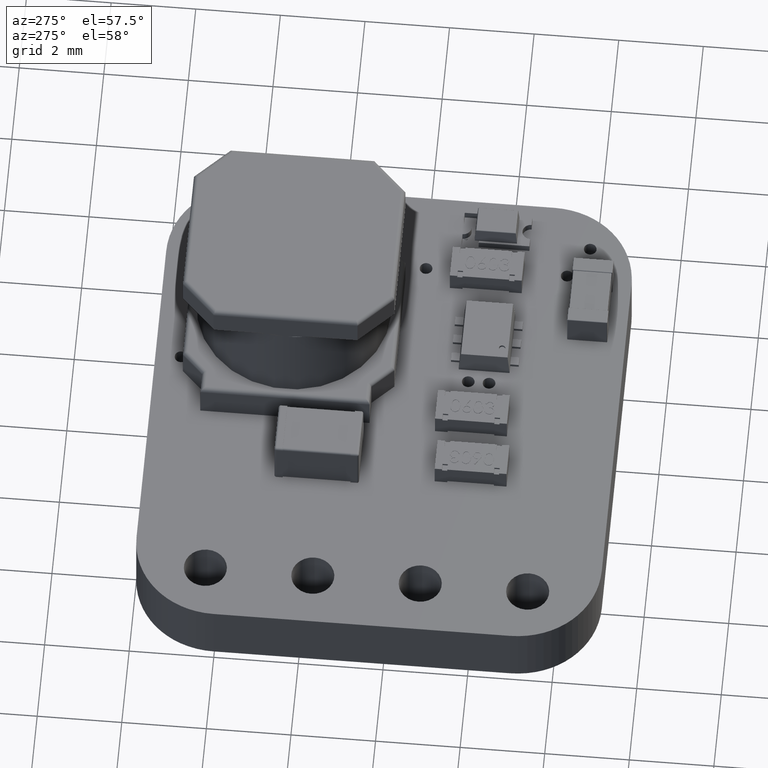
[diagram: clean part render]
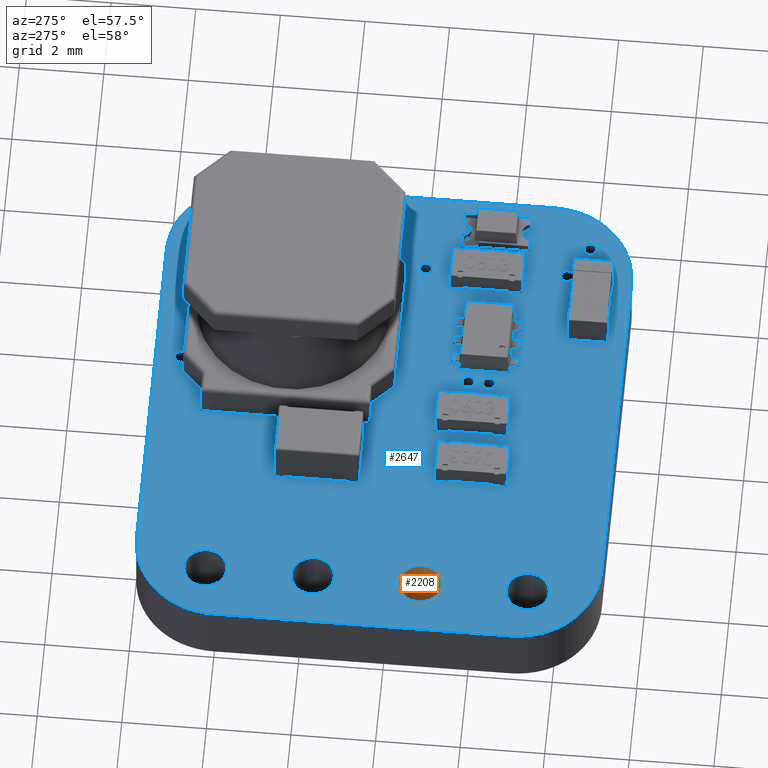
[diagram: same view with the hole feature highlighted: cylindrical wall and planar end face, labeled with their STEP entity ids]
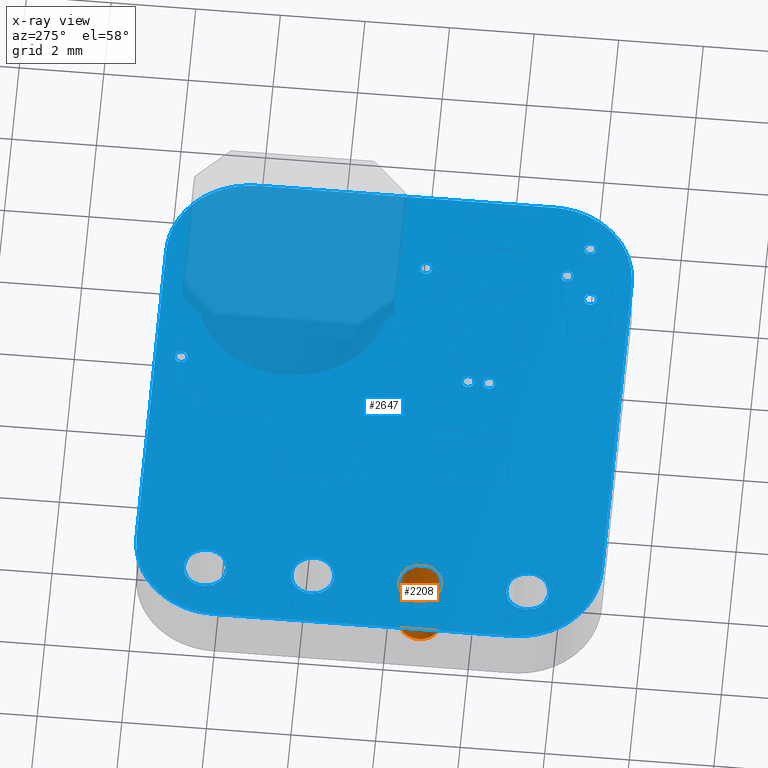
[diagram: x-ray of the same camera — body ghosted, the hole faces saturated]
A machine part, auxiliary view. The highlighted faces form one hole feature of diameter 1.016 mm: the cylindrical wall (entity #2208, orange) and its adjacent planar end face (entity #2647, blue) — they share a circular edge in the B-rep.
The next image is the same camera in x-ray (body ghosted, the hole faces saturated) — the bore reads through the body.
Wall:
#2208 = ADVANCED_FACE('',(#2209),#2236,.F.);
#2209 = FACE_BOUND('',#2210,.T.);
#2210 = EDGE_LOOP('',(#2211,#2221,#2228,#2229));
#2211 = ORIENTED_EDGE('',*,*,#2212,.T.);
#2212 = EDGE_CURVE('',#2213,#2215,#2217,.T.);
#2213 = VERTEX_POINT('',#2214);
#2214 = CARTESIAN_POINT('',(1.778,-6.77,-0.82));
#2215 = VERTEX_POINT('',#2216);
#2216 = CARTESIAN_POINT('',(1.778,-6.77,0.82));
#2217 = LINE('',#2218,#2219);
#2218 = CARTESIAN_POINT('',(1.778,-6.77,-0.82));
#2219 = VECTOR('',#2220,1.);
#2220 = DIRECTION('',(0.,0.,1.));
#2221 = ORIENTED_EDGE('',*,*,#2222,.T.);
#2222 = EDGE_CURVE('',#2215,#2215,#2223,.T.);
#2223 = CIRCLE('',#2224,0.508);
#2224 = AXIS2_PLACEMENT_3D('',#2225,#2226,#2227);
#2225 = CARTESIAN_POINT('',(1.27,-6.77,0.82));
#2226 = DIRECTION('',(0.,0.,1.));
#2227 = DIRECTION('',(1.,0.,-0.));
#2228 = ORIENTED_EDGE('',*,*,#2212,.F.);
#2229 = ORIENTED_EDGE('',*,*,#2230,.F.);
#2230 = EDGE_CURVE('',#2213,#2213,#2231,.T.);
#2231 = CIRCLE('',#2232,0.508);
#2232 = AXIS2_PLACEMENT_3D('',#2233,#2234,#2235);
#2233 = CARTESIAN_POINT('',(1.27,-6.77,-0.82));
#2234 = DIRECTION('',(0.,0.,1.));
#2235 = DIRECTION('',(1.,0.,-0.));
#2236 = CYLINDRICAL_SURFACE('',#2237,0.508);
#2237 = AXIS2_PLACEMENT_3D('',#2238,#2239,#2240);
#2238 = CARTESIAN_POINT('',(1.27,-6.77,-0.82));
#2239 = DIRECTION('',(-0.,-0.,-1.));
#2240 = DIRECTION('',(1.,0.,-0.));
End face:
#74 = VERTEX_POINT('',#75);
#75 = CARTESIAN_POINT('',(10.,0.,0.82));
#81 = EDGE_CURVE('',#74,#82,#84,.T.);
#82 = VERTEX_POINT('',#83);
#83 = CARTESIAN_POINT('',(2.,0.,0.82));
#84 = LINE('',#85,#86);
#85 = CARTESIAN_POINT('',(10.,0.,0.82));
#86 = VECTOR('',#87,1.);
#87 = DIRECTION('',(-1.,0.,0.));
#114 = VERTEX_POINT('',#115);
#115 = CARTESIAN_POINT('',(10.20786,-1.01E-02,0.82));
#121 = EDGE_CURVE('',#114,#74,#122,.T.);
#122 = LINE('',#123,#124);
#123 = CARTESIAN_POINT('',(10.20786,-1.01E-02,0.82));
#124 = VECTOR('',#125,1.);
#125 = DIRECTION('',(-0.998821572954,4.853313714442E-02,0.));
#143 = EDGE_CURVE('',#82,#144,#146,.T.);
#144 = VERTEX_POINT('',#145);
#145 = CARTESIAN_POINT('',(1.79214,-1.01E-02,0.82));
#146 = LINE('',#147,#148);
#147 = CARTESIAN_POINT('',(2.,0.,0.82));
#148 = VECTOR('',#149,1.);
#149 = DIRECTION('',(-0.998821572954,-4.853313714442E-02,0.));
#176 = VERTEX_POINT('',#177);
#177 = CARTESIAN_POINT('',(10.40894,-3.979E-02,0.82));
#183 = EDGE_CURVE('',#176,#114,#184,.T.);
#184 = LINE('',#185,#186);
#185 = CARTESIAN_POINT('',(10.40894,-3.979E-02,0.82));
#186 = VECTOR('',#187,1.);
#187 = DIRECTION('',(-0.989274402589,0.146069012397,0.));
#205 = EDGE_CURVE('',#144,#206,#208,.T.);
#206 = VERTEX_POINT('',#207);
#207 = CARTESIAN_POINT('',(1.59106,-3.979E-02,0.82));
#208 = LINE('',#209,#210);
#209 = CARTESIAN_POINT('',(1.79214,-1.01E-02,0.82));
#210 = VECTOR('',#211,1.);
#211 = DIRECTION('',(-0.989274402589,-0.146069012397,0.));
#238 = VERTEX_POINT('',#239);
#239 = CARTESIAN_POINT('',(10.60233,-8.817E-02,0.82));
#245 = EDGE_CURVE('',#238,#176,#246,.T.);
#246 = LINE('',#247,#248);
#247 = CARTESIAN_POINT('',(10.60233,-8.817E-02,0.82));
#248 = VECTOR('',#249,1.);
#249 = DIRECTION('',(-0.970104127996,0.242689062063,0.));
#267 = EDGE_CURVE('',#206,#268,#270,.T.);
#268 = VERTEX_POINT('',#269);
#269 = CARTESIAN_POINT('',(1.39767,-8.817E-02,0.82));
#270 = LINE('',#271,#272);
#271 = CARTESIAN_POINT('',(1.59106,-3.979E-02,0.82));
#272 = VECTOR('',#273,1.);
#273 = DIRECTION('',(-0.970104127996,-0.242689062063,0.));
#300 = VERTEX_POINT('',#301);
#301 = CARTESIAN_POINT('',(10.78711,-0.1543,0.82));
#307 = EDGE_CURVE('',#300,#238,#308,.T.);
#308 = LINE('',#309,#310);
#309 = CARTESIAN_POINT('',(10.78711,-0.1543,0.82));
#310 = VECTOR('',#311,1.);
#311 = DIRECTION('',(-0.941520370828,0.336956067339,0.));
#329 = EDGE_CURVE('',#268,#330,#332,.T.);
#330 = VERTEX_POINT('',#331);
#331 = CARTESIAN_POINT('',(1.21289,-0.1543,0.82));
#332 = LINE('',#333,#334);
#333 = CARTESIAN_POINT('',(1.39767,-8.817E-02,0.82));
#334 = VECTOR('',#335,1.);
#335 = DIRECTION('',(-0.941520370828,-0.336956067339,0.));
#362 = VERTEX_POINT('',#363);
#363 = CARTESIAN_POINT('',(10.96237,-0.23727,0.82));
#369 = EDGE_CURVE('',#362,#300,#370,.T.);
#370 = LINE('',#371,#372);
#371 = CARTESIAN_POINT('',(10.96237,-0.23727,0.82));
#372 = VECTOR('',#373,1.);
#373 = DIRECTION('',(-0.90383337441,0.42788460045,0.));
#391 = EDGE_CURVE('',#330,#392,#394,.T.);
#392 = VERTEX_POINT('',#393);
#393 = CARTESIAN_POINT('',(1.03763,-0.23727,0.82));
#394 = LINE('',#395,#396);
#395 = CARTESIAN_POINT('',(1.21289,-0.1543,0.82));
#396 = VECTOR('',#397,1.);
#397 = DIRECTION('',(-0.90383337441,-0.42788460045,0.));
#424 = VERTEX_POINT('',#425);
#425 = CARTESIAN_POINT('',(11.1272,-0.33618,0.82));
#431 = EDGE_CURVE('',#424,#362,#432,.T.);
#432 = LINE('',#433,#434);
#433 = CARTESIAN_POINT('',(11.1272,-0.33618,0.82));
#434 = VECTOR('',#435,1.);
#435 = DIRECTION('',(-0.857465383851,0.514541655746,0.));
#453 = EDGE_CURVE('',#392,#454,#456,.T.);
#454 = VERTEX_POINT('',#455);
#455 = CARTESIAN_POINT('',(0.8728,-0.33618,0.82));
#456 = LINE('',#457,#458);
#457 = CARTESIAN_POINT('',(1.03763,-0.23727,0.82));
#458 = VECTOR('',#459,1.);
#459 = DIRECTION('',(-0.857465383851,-0.514541655746,0.));
#486 = VERTEX_POINT('',#487);
#487 = CARTESIAN_POINT('',(11.28067,-0.4501,0.82));
#493 = EDGE_CURVE('',#486,#424,#494,.T.);
#494 = LINE('',#495,#496);
#495 = CARTESIAN_POINT('',(11.28067,-0.4501,0.82));
#496 = VECTOR('',#497,1.);
#497 = DIRECTION('',(-0.802959902094,0.596033049108,0.));
#515 = EDGE_CURVE('',#454,#516,#518,.T.);
#516 = VERTEX_POINT('',#517);
#517 = CARTESIAN_POINT('',(0.71933,-0.4501,0.82));
#518 = LINE('',#519,#520);
#519 = CARTESIAN_POINT('',(0.8728,-0.33618,0.82));
#520 = VECTOR('',#521,1.);
#521 = DIRECTION('',(-0.802959902094,-0.596033049108,0.));
#548 = VERTEX_POINT('',#549);
#549 = CARTESIAN_POINT('',(11.42188,-0.57813,0.82));
#555 = EDGE_CURVE('',#548,#486,#556,.T.);
#556 = LINE('',#557,#558);
#557 = CARTESIAN_POINT('',(11.42188,-0.57813,0.82));
#558 = VECTOR('',#559,1.);
#559 = DIRECTION('',(-0.740834380829,0.671687740086,0.));
#577 = EDGE_CURVE('',#516,#578,#580,.T.);
#578 = VERTEX_POINT('',#579);
#579 = CARTESIAN_POINT('',(0.57813,-0.57813,0.82));
#580 = LINE('',#581,#582);
#581 = CARTESIAN_POINT('',(0.71933,-0.4501,0.82));
#582 = VECTOR('',#583,1.);
#583 = DIRECTION('',(-0.740810709871,-0.671713846918,0.));
#610 = VERTEX_POINT('',#611);
#611 = CARTESIAN_POINT('',(11.5499,-0.71933,0.82));
#617 = EDGE_CURVE('',#610,#548,#618,.T.);
#618 = LINE('',#619,#620);
#619 = CARTESIAN_POINT('',(11.5499,-0.71933,0.82));
#620 = VECTOR('',#621,1.);
#621 = DIRECTION('',(-0.671685052386,0.74083681766,0.));
#639 = EDGE_CURVE('',#578,#640,#642,.T.);
#640 = VERTEX_POINT('',#641);
#641 = CARTESIAN_POINT('',(0.45011,-0.71933,0.82));
#642 = LINE('',#643,#644);
#643 = CARTESIAN_POINT('',(0.57813,-0.57813,0.82));
#644 = VECTOR('',#645,1.);
#645 = DIRECTION('',(-0.671685052386,-0.74083681766,0.));
#672 = VERTEX_POINT('',#673);
#673 = CARTESIAN_POINT('',(11.66382,-0.8728,0.82));
#679 = EDGE_CURVE('',#672,#610,#680,.T.);
#680 = LINE('',#681,#682);
#681 = CARTESIAN_POINT('',(11.66382,-0.8728,0.82));
#682 = VECTOR('',#683,1.);
#683 = DIRECTION('',(-0.596033049108,0.802959902094,0.));
#701 = EDGE_CURVE('',#640,#702,#704,.T.);
#702 = VERTEX_POINT('',#703);
#703 = CARTESIAN_POINT('',(0.33618,-0.8728,0.82));
#704 = LINE('',#705,#706);
#705 = CARTESIAN_POINT('',(0.45011,-0.71933,0.82));
#706 = VECTOR('',#707,1.);
#707 = DIRECTION('',(-0.596066780772,-0.802934862153,0.));
#734 = VERTEX_POINT('',#735);
#735 = CARTESIAN_POINT('',(11.76273,-1.03763,0.82));
#741 = EDGE_CURVE('',#734,#672,#742,.T.);
#742 = LINE('',#743,#744);
#743 = CARTESIAN_POINT('',(11.76273,-1.03763,0.82));
#744 = VECTOR('',#745,1.);
#745 = DIRECTION('',(-0.514541655746,0.857465383851,0.));
#763 = EDGE_CURVE('',#702,#764,#766,.T.);
#764 = VERTEX_POINT('',#765);
#765 = CARTESIAN_POINT('',(0.23728,-1.03763,0.82));
#766 = LINE('',#767,#768);
#767 = CARTESIAN_POINT('',(0.33618,-0.8728,0.82));
#768 = VECTOR('',#769,1.);
#769 = DIRECTION('',(-0.514503405788,-0.85748833545,0.));
#796 = VERTEX_POINT('',#797);
#797 = CARTESIAN_POINT('',(11.8457,-1.21289,0.82));
#803 = EDGE_CURVE('',#796,#734,#804,.T.);
#804 = LINE('',#805,#806);
#805 = CARTESIAN_POINT('',(11.8457,-1.21289,0.82));
#806 = VECTOR('',#807,1.);
#807 = DIRECTION('',(-0.42788460045,0.90383337441,0.));
#825 = EDGE_CURVE('',#764,#826,#828,.T.);
#826 = VERTEX_POINT('',#827);
#827 = CARTESIAN_POINT('',(0.1543,-1.21289,0.82));
#828 = LINE('',#829,#830);
#829 = CARTESIAN_POINT('',(0.23728,-1.03763,0.82));
#830 = VECTOR('',#831,1.);
#831 = DIRECTION('',(-0.427926728168,-0.903813429486,0.));
#858 = VERTEX_POINT('',#859);
#859 = CARTESIAN_POINT('',(11.91183,-1.39767,0.82));
#865 = EDGE_CURVE('',#858,#796,#866,.T.);
#866 = LINE('',#867,#868);
#867 = CARTESIAN_POINT('',(11.91183,-1.39767,0.82));
#868 = VECTOR('',#869,1.);
#869 = DIRECTION('',(-0.336956067339,0.941520370828,0.));
#887 = EDGE_CURVE('',#826,#888,#890,.T.);
#888 = VERTEX_POINT('',#889);
#889 = CARTESIAN_POINT('',(8.817E-02,-1.39767,0.82));
#890 = LINE('',#891,#892);
#891 = CARTESIAN_POINT('',(0.1543,-1.21289,0.82));
#892 = VECTOR('',#893,1.);
#893 = DIRECTION('',(-0.336956067339,-0.941520370828,0.));
#920 = VERTEX_POINT('',#921);
#921 = CARTESIAN_POINT('',(11.9602,-1.59106,0.82));
#927 = EDGE_CURVE('',#920,#858,#928,.T.);
#928 = LINE('',#929,#930);
#929 = CARTESIAN_POINT('',(11.9602,-1.59106,0.82));
#930 = VECTOR('',#931,1.);
#931 = DIRECTION('',(-0.24264185261,0.970115937073,0.));
#949 = EDGE_CURVE('',#888,#950,#952,.T.);
#950 = VERTEX_POINT('',#951);
#951 = CARTESIAN_POINT('',(3.98E-02,-1.59106,0.82));
#952 = LINE('',#953,#954);
#953 = CARTESIAN_POINT('',(8.817E-02,-1.39767,0.82));
#954 = VECTOR('',#955,1.);
#955 = DIRECTION('',(-0.24264185261,-0.970115937073,0.));
#982 = VERTEX_POINT('',#983);
#983 = CARTESIAN_POINT('',(11.9899,-1.79214,0.82));
#989 = EDGE_CURVE('',#982,#920,#990,.T.);
#990 = LINE('',#991,#992);
#991 = CARTESIAN_POINT('',(11.9899,-1.79214,0.82));
#992 = VECTOR('',#993,1.);
#993 = DIRECTION('',(-0.146117160232,0.989267292235,0.));
#1011 = EDGE_CURVE('',#950,#1012,#1014,.T.);
#1012 = VERTEX_POINT('',#1013);
#1013 = CARTESIAN_POINT('',(1.01E-02,-1.79214,0.82));
#1014 = LINE('',#1015,#1016);
#1015 = CARTESIAN_POINT('',(3.98E-02,-1.59106,0.82));
#1016 = VECTOR('',#1017,1.);
#1017 = DIRECTION('',(-0.146117160232,-0.989267292235,0.));
#1044 = VERTEX_POINT('',#1045);
#1045 = CARTESIAN_POINT('',(12.,-2.,0.82));
#1051 = EDGE_CURVE('',#1044,#982,#1052,.T.);
#1052 = LINE('',#1053,#1054);
#1053 = CARTESIAN_POINT('',(12.,-2.,0.82));
#1054 = VECTOR('',#1055,1.);
#1055 = DIRECTION('',(-4.853313714442E-02,0.998821572954,0.));
#1073 = EDGE_CURVE('',#1012,#1074,#1076,.T.);
#1074 = VERTEX_POINT('',#1075);
#1075 = CARTESIAN_POINT('',(0.,-2.,0.82));
#1076 = LINE('',#1077,#1078);
#1077 = CARTESIAN_POINT('',(1.01E-02,-1.79214,0.82));
#1078 = VECTOR('',#1079,1.);
#1079 = DIRECTION('',(-4.853313714442E-02,-0.998821572954,0.));
#1106 = VERTEX_POINT('',#1107);
#1107 = CARTESIAN_POINT('',(12.,-9.,0.82));
#1113 = EDGE_CURVE('',#1106,#1044,#1114,.T.);
#1114 = LINE('',#1115,#1116);
#1115 = CARTESIAN_POINT('',(12.,-9.,0.82));
#1116 = VECTOR('',#1117,1.);
#1117 = DIRECTION('',(0.,1.,0.));
#1135 = EDGE_CURVE('',#1074,#1136,#1138,.T.);
#1136 = VERTEX_POINT('',#1137);
#1137 = CARTESIAN_POINT('',(0.,-9.,0.82));
#1138 = LINE('',#1139,#1140);
#1139 = CARTESIAN_POINT('',(0.,-2.,0.82));
#1140 = VECTOR('',#1141,1.);
#1141 = DIRECTION('',(0.,-1.,0.));
#1168 = VERTEX_POINT('',#1169);
#1169 = CARTESIAN_POINT('',(11.9899,-9.20786,0.82));
#1175 = EDGE_CURVE('',#1168,#1106,#1176,.T.);
#1176 = LINE('',#1177,#1178);
#1177 = CARTESIAN_POINT('',(11.9899,-9.20786,0.82));
#1178 = VECTOR('',#1179,1.);
#1179 = DIRECTION('',(4.853313714442E-02,0.998821572954,0.));
#1197 = EDGE_CURVE('',#1136,#1198,#1200,.T.);
#1198 = VERTEX_POINT('',#1199);
#1199 = CARTESIAN_POINT('',(1.01E-02,-9.20786,0.82));
#1200 = LINE('',#1201,#1202);
#1201 = CARTESIAN_POINT('',(0.,-9.,0.82));
#1202 = VECTOR('',#1203,1.);
#1203 = DIRECTION('',(4.853313714442E-02,-0.998821572954,0.));
#1230 = VERTEX_POINT('',#1231);
#1231 = CARTESIAN_POINT('',(11.9602,-9.40894,0.82));
#1237 = EDGE_CURVE('',#1230,#1168,#1238,.T.);
#1238 = LINE('',#1239,#1240);
#1239 = CARTESIAN_POINT('',(11.9602,-9.40894,0.82));
#1240 = VECTOR('',#1241,1.);
#1241 = DIRECTION('',(0.146117160232,0.989267292235,0.));
#1259 = EDGE_CURVE('',#1198,#1260,#1262,.T.);
#1260 = VERTEX_POINT('',#1261);
#1261 = CARTESIAN_POINT('',(3.98E-02,-9.40894,0.82));
#1262 = LINE('',#1263,#1264);
#1263 = CARTESIAN_POINT('',(1.01E-02,-9.20786,0.82));
#1264 = VECTOR('',#1265,1.);
#1265 = DIRECTION('',(0.146117160232,-0.989267292235,0.));
#1292 = VERTEX_POINT('',#1293);
#1293 = CARTESIAN_POINT('',(11.91183,-9.60233,0.82));
#1299 = EDGE_CURVE('',#1292,#1230,#1300,.T.);
#1300 = LINE('',#1301,#1302);
#1301 = CARTESIAN_POINT('',(11.91183,-9.60233,0.82));
#1302 = VECTOR('',#1303,1.);
#1303 = DIRECTION('',(0.24264185261,0.970115937073,0.));
#1321 = EDGE_CURVE('',#1260,#1322,#1324,.T.);
#1322 = VERTEX_POINT('',#1323);
#1323 = CARTESIAN_POINT('',(8.817E-02,-9.60233,0.82));
#1324 = LINE('',#1325,#1326);
#1325 = CARTESIAN_POINT('',(3.98E-02,-9.40894,0.82));
#1326 = VECTOR('',#1327,1.);
#1327 = DIRECTION('',(0.24264185261,-0.970115937073,0.));
#1354 = VERTEX_POINT('',#1355);
#1355 = CARTESIAN_POINT('',(11.8457,-9.78711,0.82));
#1361 = EDGE_CURVE('',#1354,#1292,#1362,.T.);
#1362 = LINE('',#1363,#1364);
#1363 = CARTESIAN_POINT('',(11.8457,-9.78711,0.82));
#1364 = VECTOR('',#1365,1.);
#1365 = DIRECTION('',(0.336956067339,0.941520370828,0.));
#1383 = EDGE_CURVE('',#1322,#1384,#1386,.T.);
#1384 = VERTEX_POINT('',#1385);
#1385 = CARTESIAN_POINT('',(0.1543,-9.78711,0.82));
#1386 = LINE('',#1387,#1388);
#1387 = CARTESIAN_POINT('',(8.817E-02,-9.60233,0.82));
#1388 = VECTOR('',#1389,1.);
#1389 = DIRECTION('',(0.336956067339,-0.941520370828,0.));
#1416 = VERTEX_POINT('',#1417);
#1417 = CARTESIAN_POINT('',(11.76273,-9.96237,0.82));
#1423 = EDGE_CURVE('',#1416,#1354,#1424,.T.);
#1424 = LINE('',#1425,#1426);
#1425 = CARTESIAN_POINT('',(11.76273,-9.96237,0.82));
#1426 = VECTOR('',#1427,1.);
#1427 = DIRECTION('',(0.42788460045,0.90383337441,0.));
#1445 = EDGE_CURVE('',#1384,#1446,#1448,.T.);
#1446 = VERTEX_POINT('',#1447);
#1447 = CARTESIAN_POINT('',(0.23728,-9.96237,0.82));
#1448 = LINE('',#1449,#1450);
#1449 = CARTESIAN_POINT('',(0.1543,-9.78711,0.82));
#1450 = VECTOR('',#1451,1.);
#1451 = DIRECTION('',(0.427926728168,-0.903813429486,0.));
#1478 = VERTEX_POINT('',#1479);
#1479 = CARTESIAN_POINT('',(11.66382,-10.1272,0.82));
#1485 = EDGE_CURVE('',#1478,#1416,#1486,.T.);
#1486 = LINE('',#1487,#1488);
#1487 = CARTESIAN_POINT('',(11.66382,-10.1272,0.82));
#1488 = VECTOR('',#1489,1.);
#1489 = DIRECTION('',(0.514541655746,0.857465383851,0.));
#1507 = EDGE_CURVE('',#1446,#1508,#1510,.T.);
#1508 = VERTEX_POINT('',#1509);
#1509 = CARTESIAN_POINT('',(0.33618,-10.1272,0.82));
#1510 = LINE('',#1511,#1512);
#1511 = CARTESIAN_POINT('',(0.23728,-9.96237,0.82));
#1512 = VECTOR('',#1513,1.);
#1513 = DIRECTION('',(0.514503405788,-0.85748833545,0.));
#1540 = VERTEX_POINT('',#1541);
#1541 = CARTESIAN_POINT('',(11.5499,-10.28067,0.82));
#1547 = EDGE_CURVE('',#1540,#1478,#1548,.T.);
#1548 = LINE('',#1549,#1550);
#1549 = CARTESIAN_POINT('',(11.5499,-10.28067,0.82));
#1550 = VECTOR('',#1551,1.);
#1551 = DIRECTION('',(0.596033049108,0.802959902094,0.));
#1569 = EDGE_CURVE('',#1508,#1570,#1572,.T.);
#1570 = VERTEX_POINT('',#1571);
#1571 = CARTESIAN_POINT('',(0.45011,-10.28067,0.82));
#1572 = LINE('',#1573,#1574);
#1573 = CARTESIAN_POINT('',(0.33618,-10.1272,0.82));
#1574 = VECTOR('',#1575,1.);
#1575 = DIRECTION('',(0.596066780772,-0.802934862153,0.));
#1602 = VERTEX_POINT('',#1603);
#1603 = CARTESIAN_POINT('',(11.42188,-10.42188,0.82));
#1609 = EDGE_CURVE('',#1602,#1540,#1610,.T.);
#1610 = LINE('',#1611,#1612);
#1611 = CARTESIAN_POINT('',(11.42188,-10.42188,0.82));
#1612 = VECTOR('',#1613,1.);
#1613 = DIRECTION('',(0.671658944833,0.740860487423,0.));
#1631 = EDGE_CURVE('',#1570,#1632,#1634,.T.);
#1632 = VERTEX_POINT('',#1633);
#1633 = CARTESIAN_POINT('',(0.57813,-10.42188,0.82));
#1634 = LINE('',#1635,#1636);
#1635 = CARTESIAN_POINT('',(0.45011,-10.28067,0.82));
#1636 = VECTOR('',#1637,1.);
#1637 = DIRECTION('',(0.671658944833,-0.740860487423,0.));
#1664 = VERTEX_POINT('',#1665);
#1665 = CARTESIAN_POINT('',(11.28067,-10.5499,0.82));
#1671 = EDGE_CURVE('',#1664,#1602,#1672,.T.);
#1672 = LINE('',#1673,#1674);
#1673 = CARTESIAN_POINT('',(11.28067,-10.5499,0.82));
#1674 = VECTOR('',#1675,1.);
#1675 = DIRECTION('',(0.740860487423,0.671658944833,0.));
#1693 = EDGE_CURVE('',#1632,#1694,#1696,.T.);
#1694 = VERTEX_POINT('',#1695);
#1695 = CARTESIAN_POINT('',(0.71933,-10.5499,0.82));
#1696 = LINE('',#1697,#1698);
#1697 = CARTESIAN_POINT('',(0.57813,-10.42188,0.82));
#1698 = VECTOR('',#1699,1.);
#1699 = DIRECTION('',(0.74083681766,-0.671685052386,0.));
#1726 = VERTEX_POINT('',#1727);
#1727 = CARTESIAN_POINT('',(11.1272,-10.66382,0.82));
#1733 = EDGE_CURVE('',#1726,#1664,#1734,.T.);
#1734 = LINE('',#1735,#1736);
#1735 = CARTESIAN_POINT('',(11.1272,-10.66382,0.82));
#1736 = VECTOR('',#1737,1.);
#1737 = DIRECTION('',(0.802959902094,0.596033049108,0.));
#1755 = EDGE_CURVE('',#1694,#1756,#1758,.T.);
#1756 = VERTEX_POINT('',#1757);
#1757 = CARTESIAN_POINT('',(0.8728,-10.66382,0.82));
#1758 = LINE('',#1759,#1760);
#1759 = CARTESIAN_POINT('',(0.71933,-10.5499,0.82));
#1760 = VECTOR('',#1761,1.);
#1761 = DIRECTION('',(0.802959902094,-0.596033049108,0.));
#1788 = VERTEX_POINT('',#1789);
#1789 = CARTESIAN_POINT('',(10.96237,-10.76273,0.82));
#1795 = EDGE_CURVE('',#1788,#1726,#1796,.T.);
#1796 = LINE('',#1797,#1798);
#1797 = CARTESIAN_POINT('',(10.96237,-10.76273,0.82));
#1798 = VECTOR('',#1799,1.);
#1799 = DIRECTION('',(0.857465383851,0.514541655746,0.));
#1817 = EDGE_CURVE('',#1756,#1818,#1820,.T.);
#1818 = VERTEX_POINT('',#1819);
#1819 = CARTESIAN_POINT('',(1.03763,-10.76273,0.82));
#1820 = LINE('',#1821,#1822);
#1821 = CARTESIAN_POINT('',(0.8728,-10.66382,0.82));
#1822 = VECTOR('',#1823,1.);
#1823 = DIRECTION('',(0.857465383851,-0.514541655746,0.));
#1850 = VERTEX_POINT('',#1851);
#1851 = CARTESIAN_POINT('',(10.78711,-10.8457,0.82));
#1857 = EDGE_CURVE('',#1850,#1788,#1858,.T.);
#1858 = LINE('',#1859,#1860);
#1859 = CARTESIAN_POINT('',(10.78711,-10.8457,0.82));
#1860 = VECTOR('',#1861,1.);
#1861 = DIRECTION('',(0.90383337441,0.42788460045,0.));
#1879 = EDGE_CURVE('',#1818,#1880,#1882,.T.);
#1880 = VERTEX_POINT('',#1881);
#1881 = CARTESIAN_POINT('',(1.21289,-10.8457,0.82));
#1882 = LINE('',#1883,#1884);
#1883 = CARTESIAN_POINT('',(1.03763,-10.76273,0.82));
#1884 = VECTOR('',#1885,1.);
#1885 = DIRECTION('',(0.90383337441,-0.42788460045,0.));
#1912 = VERTEX_POINT('',#1913);
#1913 = CARTESIAN_POINT('',(10.60233,-10.91183,0.82));
#1919 = EDGE_CURVE('',#1912,#1850,#1920,.T.);
#1920 = LINE('',#1921,#1922);
#1921 = CARTESIAN_POINT('',(10.60233,-10.91183,0.82));
#1922 = VECTOR('',#1923,1.);
#1923 = DIRECTION('',(0.941520370828,0.336956067339,0.));
#1941 = EDGE_CURVE('',#1880,#1942,#1944,.T.);
#1942 = VERTEX_POINT('',#1943);
#1943 = CARTESIAN_POINT('',(1.39767,-10.91183,0.82));
#1944 = LINE('',#1945,#1946);
#1945 = CARTESIAN_POINT('',(1.21289,-10.8457,0.82));
#1946 = VECTOR('',#1947,1.);
#1947 = DIRECTION('',(0.941520370828,-0.336956067339,0.));
#1974 = VERTEX_POINT('',#1975);
#1975 = CARTESIAN_POINT('',(10.40894,-10.96021,0.82));
#1981 = EDGE_CURVE('',#1974,#1912,#1982,.T.);
#1982 = LINE('',#1983,#1984);
#1983 = CARTESIAN_POINT('',(10.40894,-10.96021,0.82));
#1984 = VECTOR('',#1985,1.);
#1985 = DIRECTION('',(0.970104127996,0.242689062063,0.));
#2003 = EDGE_CURVE('',#1942,#2004,#2006,.T.);
#2004 = VERTEX_POINT('',#2005);
#2005 = CARTESIAN_POINT('',(1.59106,-10.96021,0.82));
#2006 = LINE('',#2007,#2008);
#2007 = CARTESIAN_POINT('',(1.39767,-10.91183,0.82));
#2008 = VECTOR('',#2009,1.);
#2009 = DIRECTION('',(0.970104127996,-0.242689062063,0.));
#2036 = VERTEX_POINT('',#2037);
#2037 = CARTESIAN_POINT('',(10.20786,-10.9899,0.82));
#2043 = EDGE_CURVE('',#2036,#1974,#2044,.T.);
#2044 = LINE('',#2045,#2046);
#2045 = CARTESIAN_POINT('',(10.20786,-10.9899,0.82));
#2046 = VECTOR('',#2047,1.);
#2047 = DIRECTION('',(0.989274402589,0.146069012397,0.));
#2065 = EDGE_CURVE('',#2004,#2066,#2068,.T.);
#2066 = VERTEX_POINT('',#2067);
#2067 = CARTESIAN_POINT('',(1.79214,-10.9899,0.82));
#2068 = LINE('',#2069,#2070);
#2069 = CARTESIAN_POINT('',(1.59106,-10.96021,0.82));
#2070 = VECTOR('',#2071,1.);
#2071 = DIRECTION('',(0.989274402589,-0.146069012397,0.));
#2098 = VERTEX_POINT('',#2099);
#2099 = CARTESIAN_POINT('',(10.,-11.,0.82));
#2105 = EDGE_CURVE('',#2098,#2036,#2106,.T.);
#2106 = LINE('',#2107,#2108);
#2107 = CARTESIAN_POINT('',(10.,-11.,0.82));
#2108 = VECTOR('',#2109,1.);
#2109 = DIRECTION('',(0.998821572954,4.853313714442E-02,0.));
#2127 = EDGE_CURVE('',#2066,#2128,#2130,.T.);
#2128 = VERTEX_POINT('',#2129);
#2129 = CARTESIAN_POINT('',(2.,-11.,0.82));
#2130 = LINE('',#2131,#2132);
#2131 = CARTESIAN_POINT('',(1.79214,-10.9899,0.82));
#2132 = VECTOR('',#2133,1.);
#2133 = DIRECTION('',(0.998821572954,-4.853313714442E-02,0.));
#2158 = EDGE_CURVE('',#2128,#2098,#2159,.T.);
#2159 = LINE('',#2160,#2161);
#2160 = CARTESIAN_POINT('',(2.,-11.,0.82));
#2161 = VECTOR('',#2162,1.);
#2162 = DIRECTION('',(1.,0.,0.));
#2182 = VERTEX_POINT('',#2183);
#2183 = CARTESIAN_POINT('',(1.778,-9.31,0.82));
#2189 = EDGE_CURVE('',#2182,#2182,#2190,.T.);
#2190 = CIRCLE('',#2191,0.508);
#2191 = AXIS2_PLACEMENT_3D('',#2192,#2193,#2194);
#2192 = CARTESIAN_POINT('',(1.27,-9.31,0.82));
#2193 = DIRECTION('',(0.,0.,1.));
#2194 = DIRECTION('',(1.,0.,-0.));
#2215 = VERTEX_POINT('',#2216);
#2216 = CARTESIAN_POINT('',(1.778,-6.77,0.82));
#2222 = EDGE_CURVE('',#2215,#2215,#2223,.T.);
#2223 = CIRCLE('',#2224,0.508);
#2224 = AXIS2_PLACEMENT_3D('',#2225,#2226,#2227);
#2225 = CARTESIAN_POINT('',(1.27,-6.77,0.82));
#2226 = DIRECTION('',(0.,0.,1.));
#2227 = DIRECTION('',(1.,0.,-0.));
#2248 = VERTEX_POINT('',#2249);
#2249 = CARTESIAN_POINT('',(7.1352,-7.89693,0.82));
#2255 = EDGE_CURVE('',#2248,#2248,#2256,.T.);
#2256 = CIRCLE('',#2257,0.15);
#2257 = AXIS2_PLACEMENT_3D('',#2258,#2259,#2260);
#2258 = CARTESIAN_POINT('',(6.9852,-7.89693,0.82));
#2259 = DIRECTION('',(0.,0.,1.));
#2260 = DIRECTION('',(1.,0.,-0.));
#2281 = VERTEX_POINT('',#2282);
#2282 = CARTESIAN_POINT('',(9.675,-10.072,0.82));
#2288 = EDGE_CURVE('',#2281,#2281,#2289,.T.);
#2289 = CIRCLE('',#2290,0.15);
#2290 = AXIS2_PLACEMENT_3D('',#2291,#2292,#2293);
#2291 = CARTESIAN_POINT('',(9.525,-10.072,0.82));
#2292 = DIRECTION('',(0.,0.,1.));
#2293 = DIRECTION('',(1.,0.,-0.));
#2314 = VERTEX_POINT('',#2315);
#2315 = CARTESIAN_POINT('',(11.072,-9.945,0.82));
#2321 = EDGE_CURVE('',#2314,#2314,#2322,.T.);
#2322 = CIRCLE('',#2323,0.15);
#2323 = AXIS2_PLACEMENT_3D('',#2324,#2325,#2326);
#2324 = CARTESIAN_POINT('',(10.922,-9.945,0.82));
#2325 = DIRECTION('',(0.,0.,1.));
#2326 = DIRECTION('',(1.,0.,-0.));
#2347 = VERTEX_POINT('',#2348);
#2348 = CARTESIAN_POINT('',(10.27642,-9.46954,0.82));
#2354 = EDGE_CURVE('',#2347,#2347,#2355,.T.);
#2355 = CIRCLE('',#2356,0.15);
#2356 = AXIS2_PLACEMENT_3D('',#2357,#2358,#2359);
#2357 = CARTESIAN_POINT('',(10.12642,-9.46954,0.82));
#2358 = DIRECTION('',(0.,0.,1.));
#2359 = DIRECTION('',(1.,0.,-0.));
#2380 = VERTEX_POINT('',#2381);
#2381 = CARTESIAN_POINT('',(7.135,-7.405,0.82));
#2387 = EDGE_CURVE('',#2380,#2380,#2388,.T.);
#2388 = CIRCLE('',#2389,0.15);
#2389 = AXIS2_PLACEMENT_3D('',#2390,#2391,#2392);
#2390 = CARTESIAN_POINT('',(6.985,-7.405,0.82));
#2391 = DIRECTION('',(0.,0.,1.));
#2392 = DIRECTION('',(1.,0.,-0.));
#2413 = VERTEX_POINT('',#2414);
#2414 = CARTESIAN_POINT('',(10.19899,-6.13979,0.82));
#2420 = EDGE_CURVE('',#2413,#2413,#2421,.T.);
#2421 = CIRCLE('',#2422,0.15);
#2422 = AXIS2_PLACEMENT_3D('',#2423,#2424,#2425);
#2423 = CARTESIAN_POINT('',(10.04899,-6.13979,0.82));
#2424 = DIRECTION('',(0.,0.,1.));
#2425 = DIRECTION('',(1.,0.,-0.));
#2446 = VERTEX_POINT('',#2447);
#2447 = CARTESIAN_POINT('',(1.778,-4.23,0.82));
#2453 = EDGE_CURVE('',#2446,#2446,#2454,.T.);
#2454 = CIRCLE('',#2455,0.508);
#2455 = AXIS2_PLACEMENT_3D('',#2456,#2457,#2458);
#2456 = CARTESIAN_POINT('',(1.27,-4.23,0.82));
#2457 = DIRECTION('',(0.,0.,1.));
#2458 = DIRECTION('',(1.,0.,-0.));
#2479 = VERTEX_POINT('',#2480);
#2480 = CARTESIAN_POINT('',(1.778,-1.69,0.82));
#2486 = EDGE_CURVE('',#2479,#2479,#2487,.T.);
#2487 = CIRCLE('',#2488,0.508);
#2488 = AXIS2_PLACEMENT_3D('',#2489,#2490,#2491);
#2489 = CARTESIAN_POINT('',(1.27,-1.69,0.82));
#2490 = DIRECTION('',(0.,0.,1.));
#2491 = DIRECTION('',(1.,0.,-0.));
#2512 = VERTEX_POINT('',#2513);
#2513 = CARTESIAN_POINT('',(7.23879,-0.60535,0.82));
#2519 = EDGE_CURVE('',#2512,#2512,#2520,.T.);
#2520 = CIRCLE('',#2521,0.15);
#2521 = AXIS2_PLACEMENT_3D('',#2522,#2523,#2524);
#2522 = CARTESIAN_POINT('',(7.08879,-0.60535,0.82));
#2523 = DIRECTION('',(0.,0.,1.));
#2524 = DIRECTION('',(1.,0.,-0.));
#2647 = ADVANCED_FACE('',(#2648,#2718,#2721,#2724,#2727,#2730,#2733,
    #2736,#2739,#2742,#2745,#2748),#2751,.T.);
#2648 = FACE_BOUND('',#2649,.T.);
#2649 = EDGE_LOOP('',(#2650,#2651,#2652,#2653,#2654,#2655,#2656,#2657,
    #2658,#2659,#2660,#2661,#2662,#2663,#2664,#2665,#2666,#2667,#2668,
    #2669,#2670,#2671,#2672,#2673,#2674,#2675,#2676,#2677,#2678,#2679,
    #2680,#2681,#2682,#2683,#2684,#2685,#2686,#2687,#2688,#2689,#2690,
    #2691,#2692,#2693,#2694,#2695,#2696,#2697,#2698,#2699,#2700,#2701,
    #2702,#2703,#2704,#2705,#2706,#2707,#2708,#2709,#2710,#2711,#2712,
    #2713,#2714,#2715,#2716,#2717));
#2650 = ORIENTED_EDGE('',*,*,#81,.T.);
#2651 = ORIENTED_EDGE('',*,*,#143,.T.);
#2652 = ORIENTED_EDGE('',*,*,#205,.T.);
#2653 = ORIENTED_EDGE('',*,*,#267,.T.);
#2654 = ORIENTED_EDGE('',*,*,#329,.T.);
#2655 = ORIENTED_EDGE('',*,*,#391,.T.);
#2656 = ORIENTED_EDGE('',*,*,#453,.T.);
#2657 = ORIENTED_EDGE('',*,*,#515,.T.);
#2658 = ORIENTED_EDGE('',*,*,#577,.T.);
#2659 = ORIENTED_EDGE('',*,*,#639,.T.);
#2660 = ORIENTED_EDGE('',*,*,#701,.T.);
#2661 = ORIENTED_EDGE('',*,*,#763,.T.);
#2662 = ORIENTED_EDGE('',*,*,#825,.T.);
#2663 = ORIENTED_EDGE('',*,*,#887,.T.);
#2664 = ORIENTED_EDGE('',*,*,#949,.T.);
#2665 = ORIENTED_EDGE('',*,*,#1011,.T.);
#2666 = ORIENTED_EDGE('',*,*,#1073,.T.);
#2667 = ORIENTED_EDGE('',*,*,#1135,.T.);
#2668 = ORIENTED_EDGE('',*,*,#1197,.T.);
#2669 = ORIENTED_EDGE('',*,*,#1259,.T.);
#2670 = ORIENTED_EDGE('',*,*,#1321,.T.);
#2671 = ORIENTED_EDGE('',*,*,#1383,.T.);
#2672 = ORIENTED_EDGE('',*,*,#1445,.T.);
#2673 = ORIENTED_EDGE('',*,*,#1507,.T.);
#2674 = ORIENTED_EDGE('',*,*,#1569,.T.);
#2675 = ORIENTED_EDGE('',*,*,#1631,.T.);
#2676 = ORIENTED_EDGE('',*,*,#1693,.T.);
#2677 = ORIENTED_EDGE('',*,*,#1755,.T.);
#2678 = ORIENTED_EDGE('',*,*,#1817,.T.);
#2679 = ORIENTED_EDGE('',*,*,#1879,.T.);
#2680 = ORIENTED_EDGE('',*,*,#1941,.T.);
#2681 = ORIENTED_EDGE('',*,*,#2003,.T.);
#2682 = ORIENTED_EDGE('',*,*,#2065,.T.);
#2683 = ORIENTED_EDGE('',*,*,#2127,.T.);
#2684 = ORIENTED_EDGE('',*,*,#2158,.T.);
#2685 = ORIENTED_EDGE('',*,*,#2105,.T.);
#2686 = ORIENTED_EDGE('',*,*,#2043,.T.);
#2687 = ORIENTED_EDGE('',*,*,#1981,.T.);
#2688 = ORIENTED_EDGE('',*,*,#1919,.T.);
#2689 = ORIENTED_EDGE('',*,*,#1857,.T.);
#2690 = ORIENTED_EDGE('',*,*,#1795,.T.);
#2691 = ORIENTED_EDGE('',*,*,#1733,.T.);
#2692 = ORIENTED_EDGE('',*,*,#1671,.T.);
#2693 = ORIENTED_EDGE('',*,*,#1609,.T.);
#2694 = ORIENTED_EDGE('',*,*,#1547,.T.);
#2695 = ORIENTED_EDGE('',*,*,#1485,.T.);
#2696 = ORIENTED_EDGE('',*,*,#1423,.T.);
#2697 = ORIENTED_EDGE('',*,*,#1361,.T.);
#2698 = ORIENTED_EDGE('',*,*,#1299,.T.);
#2699 = ORIENTED_EDGE('',*,*,#1237,.T.);
#2700 = ORIENTED_EDGE('',*,*,#1175,.T.);
#2701 = ORIENTED_EDGE('',*,*,#1113,.T.);
#2702 = ORIENTED_EDGE('',*,*,#1051,.T.);
#2703 = ORIENTED_EDGE('',*,*,#989,.T.);
#2704 = ORIENTED_EDGE('',*,*,#927,.T.);
#2705 = ORIENTED_EDGE('',*,*,#865,.T.);
#2706 = ORIENTED_EDGE('',*,*,#803,.T.);
#2707 = ORIENTED_EDGE('',*,*,#741,.T.);
#2708 = ORIENTED_EDGE('',*,*,#679,.T.);
#2709 = ORIENTED_EDGE('',*,*,#617,.T.);
#2710 = ORIENTED_EDGE('',*,*,#555,.T.);
#2711 = ORIENTED_EDGE('',*,*,#493,.T.);
#2712 = ORIENTED_EDGE('',*,*,#431,.T.);
#2713 = ORIENTED_EDGE('',*,*,#369,.T.);
#2714 = ORIENTED_EDGE('',*,*,#307,.T.);
#2715 = ORIENTED_EDGE('',*,*,#245,.T.);
#2716 = ORIENTED_EDGE('',*,*,#183,.T.);
#2717 = ORIENTED_EDGE('',*,*,#121,.T.);
#2718 = FACE_BOUND('',#2719,.T.);
#2719 = EDGE_LOOP('',(#2720));
#2720 = ORIENTED_EDGE('',*,*,#2189,.F.);
#2721 = FACE_BOUND('',#2722,.T.);
#2722 = EDGE_LOOP('',(#2723));
#2723 = ORIENTED_EDGE('',*,*,#2222,.F.);
#2724 = FACE_BOUND('',#2725,.T.);
#2725 = EDGE_LOOP('',(#2726));
#2726 = ORIENTED_EDGE('',*,*,#2255,.F.);
#2727 = FACE_BOUND('',#2728,.T.);
#2728 = EDGE_LOOP('',(#2729));
#2729 = ORIENTED_EDGE('',*,*,#2288,.F.);
#2730 = FACE_BOUND('',#2731,.T.);
#2731 = EDGE_LOOP('',(#2732));
#2732 = ORIENTED_EDGE('',*,*,#2321,.F.);
#2733 = FACE_BOUND('',#2734,.T.);
#2734 = EDGE_LOOP('',(#2735));
#2735 = ORIENTED_EDGE('',*,*,#2354,.F.);
#2736 = FACE_BOUND('',#2737,.T.);
#2737 = EDGE_LOOP('',(#2738));
#2738 = ORIENTED_EDGE('',*,*,#2387,.F.);
#2739 = FACE_BOUND('',#2740,.T.);
#2740 = EDGE_LOOP('',(#2741));
#2741 = ORIENTED_EDGE('',*,*,#2420,.F.);
#2742 = FACE_BOUND('',#2743,.T.);
#2743 = EDGE_LOOP('',(#2744));
#2744 = ORIENTED_EDGE('',*,*,#2453,.F.);
#2745 = FACE_BOUND('',#2746,.T.);
#2746 = EDGE_LOOP('',(#2747));
#2747 = ORIENTED_EDGE('',*,*,#2486,.F.);
#2748 = FACE_BOUND('',#2749,.T.);
#2749 = EDGE_LOOP('',(#2750));
#2750 = ORIENTED_EDGE('',*,*,#2519,.F.);
#2751 = PLANE('',#2752);
#2752 = AXIS2_PLACEMENT_3D('',#2753,#2754,#2755);
#2753 = CARTESIAN_POINT('',(6.000000776048,-5.500000204563,0.82));
#2754 = DIRECTION('',(0.,0.,1.));
#2755 = DIRECTION('',(1.,0.,-0.));